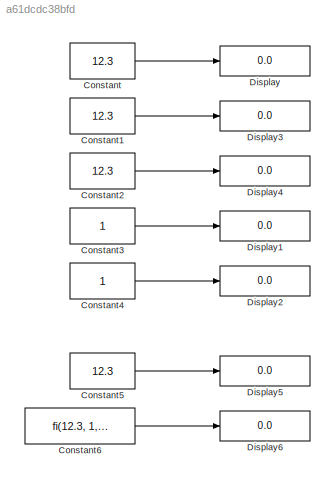
MODEL slx_a61dcdc38bfd
KIND model
CONFIG AbsTol = auto
CONFIG FixedStep = auto
CONFIG MaxStep = auto
CONFIG MinStep = auto
CONFIG RelTol = 1e-3
CONFIG SampleTimeConstraint = Unconstrained
CONFIG Solver = ode45
CONFIG SolverMode = SingleTasking
CONFIG SolverName = ode45
CONFIG StartTime = 0.0
CONFIG StopTime = 10.0
BLOCK [Constant] Constant
  OutDataTypeStr = fixdt(1,16,4)
  SampleTime = 1
  Value = 12.3
BLOCK [Constant] Constant1
  OutDataTypeStr = fixdt(0,16,4)
  SampleTime = 1
  Value = 12.3
BLOCK [Constant] Constant2
  OutDataTypeStr = fixdt(0,16,-4)
  SampleTime = 1
  Value = 12.3
BLOCK [Constant] Constant3
  OutDataTypeStr = boolean
  SampleTime = 1
BLOCK [Constant] Constant4
  OutDataTypeStr = fixdt(0,1,0)
  SampleTime = 1
BLOCK [Constant] Constant5
  OutDataTypeStr = fixdt(1,16,1.2,1)
  SampleTime = 1
  Value = 12.3
BLOCK [Constant] Constant6
  SampleTime = 1
  Value = fi(12.3, 1, 16, 1.2, 20, 3)
BLOCK [Display] Display
  Decimation = 1
  Ports = [1]
BLOCK [Display] Display1
  Decimation = 1
  Ports = [1]
BLOCK [Display] Display2
  Decimation = 1
  Ports = [1]
BLOCK [Display] Display3
  Decimation = 1
  Ports = [1]
BLOCK [Display] Display4
  Decimation = 1
  Ports = [1]
BLOCK [Display] Display5
  Decimation = 1
  Ports = [1]
BLOCK [Display] Display6
  Decimation = 1
  Ports = [1]
LINE Constant1:1 -> Display3:1
LINE Constant2:1 -> Display4:1
LINE Constant3:1 -> Display1:1
LINE Constant4:1 -> Display2:1
LINE Constant5:1 -> Display5:1
LINE Constant6:1 -> Display6:1
LINE Constant:1 -> Display:1
